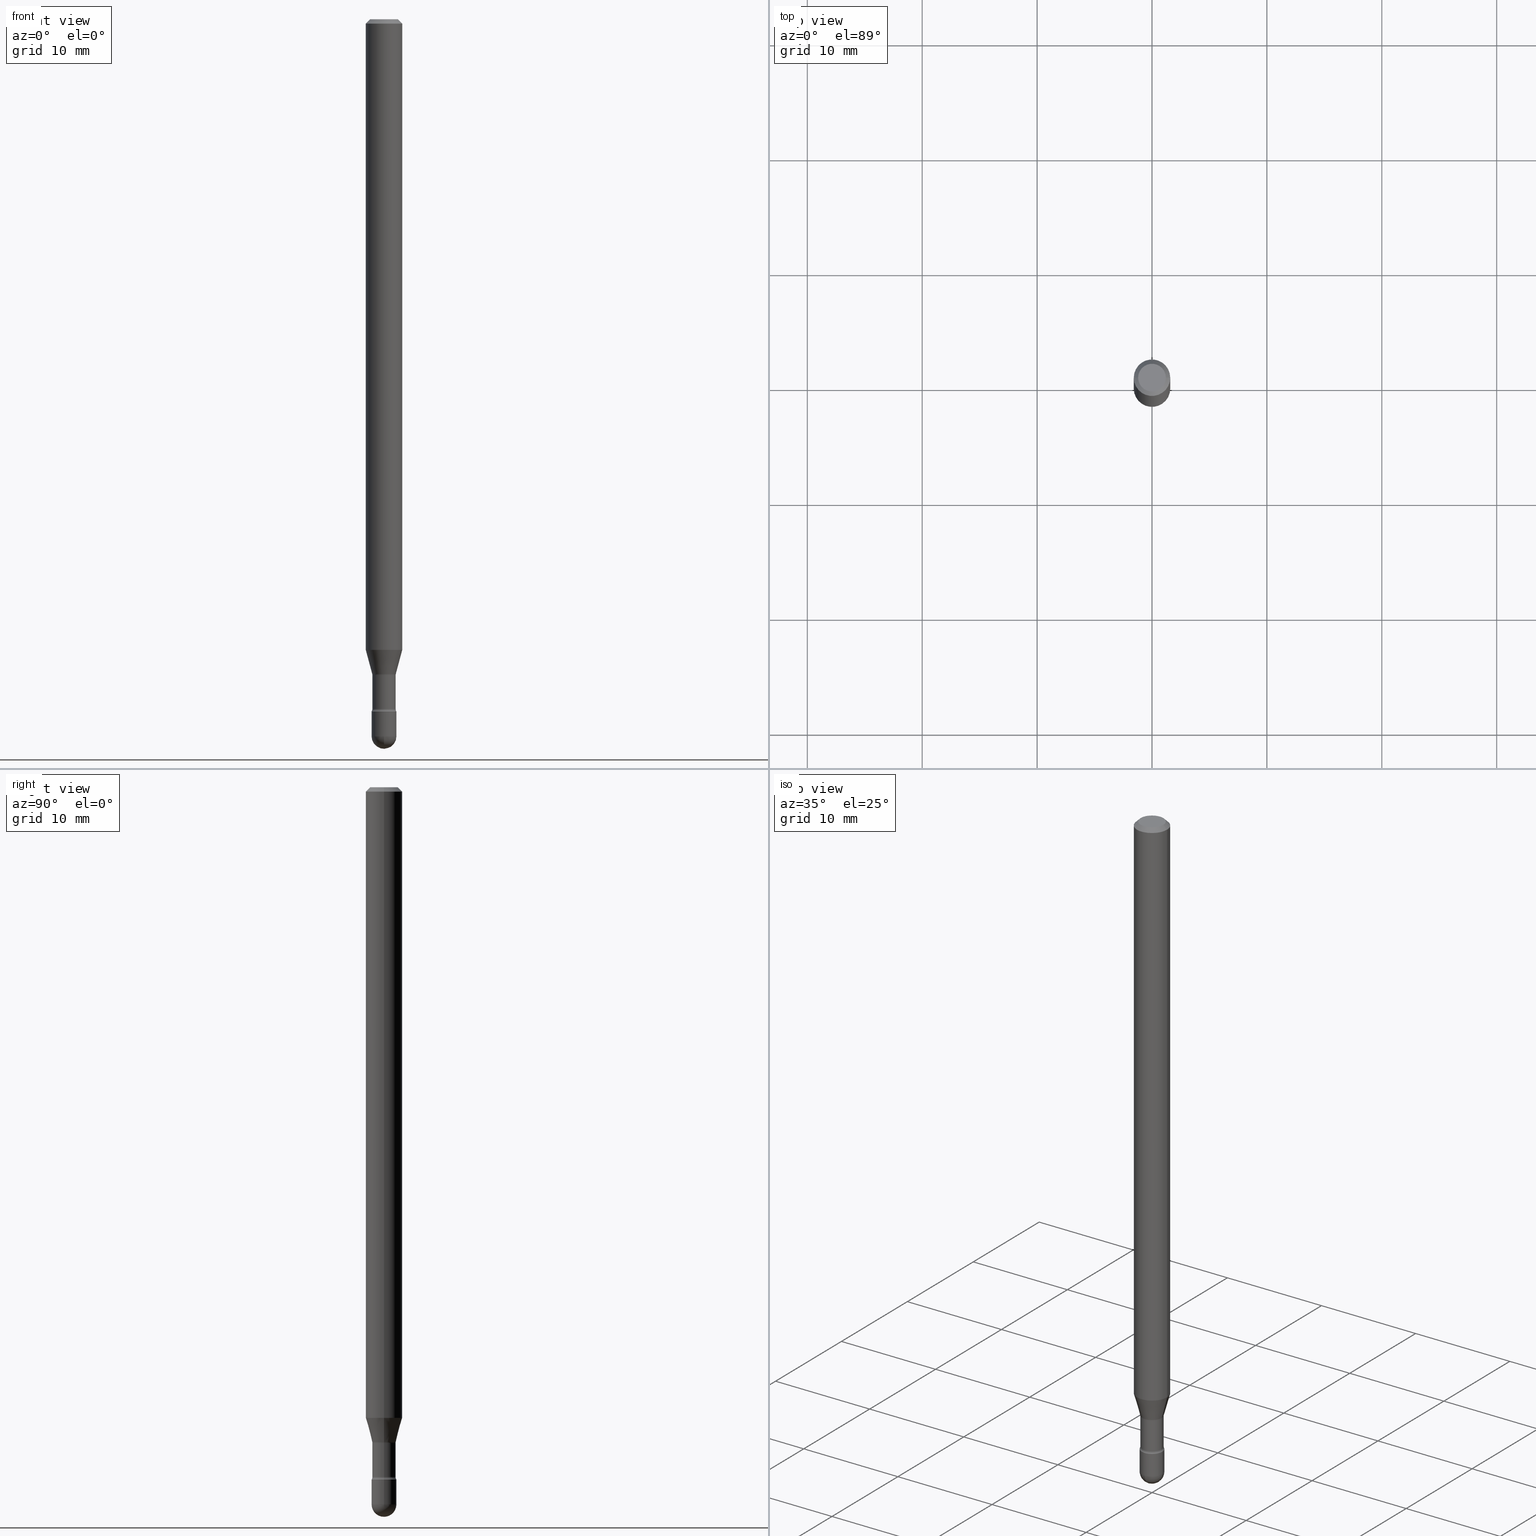
[diagram: canonical four-view strip — front | top / right | iso, engineering-drawing reading convention]
A machine part, canonical four-view strip (front | top / right | iso — engineering-drawing reading convention). The complete STEP part file that produces these views, byte-faithful:
ISO-10303-21;
HEADER;
FILE_DESCRIPTION (( 'STEP AP203' ),
    '1' );
FILE_NAME ('09543.STEP',
    '2024-04-10T00:30:16',
    ( '' ),
    ( '' ),
    'SwSTEP 2.0',
    'SolidWorks 2023',
    '' );
FILE_SCHEMA (( 'CONFIG_CONTROL_DESIGN' ));
ENDSEC;

DATA;
#1 = APPLICATION_PROTOCOL_DEFINITION ( 'international standard', 'config_control_design', 1994, #558 ) ;
#2 = CYLINDRICAL_SURFACE ( 'NONE', #42, 0.03995000000000002716 ) ;
#3 = DIRECTION ( 'NONE',  ( -2.445468806185136597E-29, 3.491481338843145583E-15, 1.000000000000000000 ) ) ;
#4 = LENGTH_MEASURE_WITH_UNIT ( LENGTH_MEASURE( 0.02539999999999999897 ), #262 );
#5 = VERTEX_POINT ( 'NONE', #209 ) ;
#6 = DIRECTION ( 'NONE',  ( -2.438088387897960049E-29, 3.491481338843145188E-15, 1.000000000000000000 ) ) ;
#7 = CARTESIAN_POINT ( 'NONE',  ( 6.009739591199973545E-29, -8.580315390207031617E-15, -2.457500000000000018 ) ) ;
#8 = AXIS2_PLACEMENT_3D ( 'NONE', #528, #492, #316 ) ;
#9 = EDGE_CURVE ( 'NONE', #60, #522, #317, .T. ) ;
#10 = ORIENTED_EDGE ( 'NONE', *, *, #423, .F. ) ;
#11 = ORIENTED_EDGE ( 'NONE', *, *, #13, .T. ) ;
#12 = LINE ( 'NONE', #517, #441 ) ;
#13 = EDGE_CURVE ( 'NONE', #322, #99, #75, .T. ) ;
#14 = EDGE_LOOP ( 'NONE', ( #66, #195, #122, #470 ) ) ;
#15 = CARTESIAN_POINT ( 'NONE',  ( 5.780192113673479644E-29, -8.252582428684399354E-15, -2.363633549139569023 ) ) ;
#16 = CIRCLE ( 'NONE', #299, 0.01499999999999996822 ) ;
#17 = AXIS2_PLACEMENT_3D ( 'NONE', #324, #463, #553 ) ;
#18 = EDGE_LOOP ( 'NONE', ( #50, #103, #437, #511 ) ) ;
#19 = PERSON_AND_ORGANIZATION_ROLE ( 'creator' ) ;
#20 = DIRECTION ( 'NONE',  ( 1.000000000000000000, -6.982962677686273810E-15, 0.000000000000000000 ) ) ;
#21 = ORIENTED_EDGE ( 'NONE', *, *, #399, .T. ) ;
#22 = CALENDAR_DATE ( 2024, 9, 4 ) ;
#23 = CARTESIAN_POINT ( 'NONE',  ( 3.668203209277725232E-31, -5.237222008264747365E-17, -0.01500000000000008271 ) ) ;
#24 = DIRECTION ( 'NONE',  ( -2.445468806185136597E-29, 3.491481338843145583E-15, 1.000000000000000000 ) ) ;
#25 = PLANE ( 'NONE',  #41 ) ;
#26 = FACE_OUTER_BOUND ( 'NONE', #89, .T. ) ;
#27 = AXIS2_PLACEMENT_3D ( 'NONE', #171, #102, #520 ) ;
#28 = CARTESIAN_POINT ( 'NONE',  ( 2.967759138017263083E-16, 0.04249999999999140576, -2.457500000000000462 ) ) ;
#29 = AXIS2_PLACEMENT_3D ( 'NONE', #364, #140, #151 ) ;
#30 = APPROVAL_PERSON_ORGANIZATION ( #329, #38, #507 ) ;
#31 = ORIENTED_EDGE ( 'NONE', *, *, #349, .T. ) ;
#32 = DATE_TIME_ROLE ( 'creation_date' ) ;
#33 = CC_DESIGN_DATE_AND_TIME_ASSIGNMENT ( #458, #495, ( #466 ) ) ;
#34 = EDGE_LOOP ( 'NONE', ( #48, #465, #446, #319 ) ) ;
#35 = APPROVAL_DATE_TIME ( #67, #510 ) ;
#36 = ORIENTED_EDGE ( 'NONE', *, *, #312, .T. ) ;
#37 = AXIS2_PLACEMENT_3D ( 'NONE', #231, #191, #356 ) ;
#38 = APPROVAL ( #280, 'UNSPECIFIED' ) ;
#39 = CARTESIAN_POINT ( 'NONE',  ( 5.485412742508554761E-29, -7.831715611289249761E-15, -2.243092501787273374 ) ) ;
#40 = DIRECTION ( 'NONE',  ( -1.000000000000000000, 7.105427357601006592E-15, 0.000000000000000000 ) ) ;
#41 = AXIS2_PLACEMENT_3D ( 'NONE', #85, #460, #539 ) ;
#42 = AXIS2_PLACEMENT_3D ( 'NONE', #443, #96, #220 ) ;
#43 = CIRCLE ( 'NONE', #222, 0.06250000000000000000 ) ;
#44 = CARTESIAN_POINT ( 'NONE',  ( 3.668203209277725232E-31, -5.237222008264747365E-17, -0.01500000000000008271 ) ) ;
#45 = CARTESIAN_POINT ( 'NONE',  ( 0.000000000000000000, 0.000000000000000000, 0.000000000000000000 ) ) ;
#46 = DIRECTION ( 'NONE',  ( 1.000000000000000000, -6.982962677686267499E-15, 4.884662768193073002E-29 ) ) ;
#47 = EDGE_CURVE ( 'NONE', #273, #60, #382, .T. ) ;
#48 = ORIENTED_EDGE ( 'NONE', *, *, #312, .F. ) ;
#49 = CARTESIAN_POINT ( 'NONE',  ( -0.05494999999999999885, -7.454827305980765698E-15, -2.246974787463811296 ) ) ;
#50 = ORIENTED_EDGE ( 'NONE', *, *, #170, .F. ) ;
#51 = CARTESIAN_POINT ( 'NONE',  ( 5.284272327951308213E-29, -7.544540407034922761E-15, -2.160842254289322195 ) ) ;
#52 = CONICAL_SURFACE ( 'NONE', #432, 0.06250000000000000000, 0.7853981633974483900 ) ;
#53 =( NAMED_UNIT ( * ) SI_UNIT ( $, .STERADIAN. ) SOLID_ANGLE_UNIT ( ) );
#54 = ORIENTED_EDGE ( 'NONE', *, *, #199, .F. ) ;
#55 = DIRECTION ( 'NONE',  ( 7.105427357601001859E-15, 1.000000000000000000, -3.491481338843145583E-15 ) ) ;
#56 = DIRECTION ( 'NONE',  ( 1.000000000000000000, -6.982962677686266711E-15, 4.876176775795935793E-29 ) ) ;
#57 = EDGE_LOOP ( 'NONE', ( #554, #404, #21, #198, #10 ) ) ;
#58 = DIRECTION ( 'NONE',  ( 1.000000000000000000, -6.982962677686269866E-15, 0.000000000000000000 ) ) ;
#59 = ADVANCED_FACE ( 'NONE', ( #206 ), #532, .F. ) ;
#60 = VERTEX_POINT ( 'NONE', #472 ) ;
#61 = VERTEX_POINT ( 'NONE', #513 ) ;
#62 = APPROVAL_ROLE ( '' ) ;
#63 = CARTESIAN_POINT ( 'NONE',  ( 5.485412742508554761E-29, -7.831715611289249761E-15, -2.243092501787273374 ) ) ;
#64 = AXIS2_PLACEMENT_3D ( 'NONE', #94, #545, #123 ) ;
#65 = AXIS2_PLACEMENT_3D ( 'NONE', #427, #157, #150 ) ;
#66 = ORIENTED_EDGE ( 'NONE', *, *, #335, .F. ) ;
#67 = DATE_AND_TIME ( #549, #385 ) ;
#68 = DIRECTION ( 'NONE',  ( 1.000000000000000000, -6.982962677686266711E-15, 0.000000000000000000 ) ) ;
#69 = ADVANCED_FACE ( 'NONE', ( #473 ), #25, .T. ) ;
#70 = PERSON_AND_ORGANIZATION ( #134, #378 ) ;
#71 = DIRECTION ( 'NONE',  ( 1.000000000000000000, -6.982962677686261977E-15, 4.883557194083111219E-29 ) ) ;
#72 = LINE ( 'NONE', #243, #172 ) ;
#73 = ORIENTED_EDGE ( 'NONE', *, *, #557, .F. ) ;
#74 = FACE_OUTER_BOUND ( 'NONE', #258, .T. ) ;
#75 = CIRCLE ( 'NONE', #207, 0.04250000000000000999 ) ;
#76 = CYLINDRICAL_SURFACE ( 'NONE', #490, 0.03995000000000002716 ) ;
#77 = APPROVAL_PERSON_ORGANIZATION ( #287, #83, #152 ) ;
#78 = PERSON_AND_ORGANIZATION_ROLE ( 'design_supplier' ) ;
#79 = DIRECTION ( 'NONE',  ( 1.000000000000000000, -6.982962677686266711E-15, 4.852736867747366207E-29 ) ) ;
#80 = ORIENTED_EDGE ( 'NONE', *, *, #153, .F. ) ;
#81 = CARTESIAN_POINT ( 'NONE',  ( -0.06250000000000000000, -3.354367103708722895E-15, -0.01500000000000008271 ) ) ;
#82 = DIRECTION ( 'NONE',  ( 1.000000000000000000, -6.982962677686255667E-15, 0.000000000000000000 ) ) ;
#83 = APPROVAL ( #289, 'UNSPECIFIED' ) ;
#84 = DIRECTION ( 'NONE',  ( 1.000000000000000000, -6.982962677686266711E-15, 0.000000000000000000 ) ) ;
#85 = CARTESIAN_POINT ( 'NONE',  ( 5.800652008271142608E-29, -8.281793735735939519E-15, -2.371999999999999886 ) ) ;
#86 = CIRCLE ( 'NONE', #508, 0.03995000000000003409 ) ;
#87 = CIRCLE ( 'NONE', #197, 0.04046111260566397777 ) ;
#88 = EDGE_CURVE ( 'NONE', #233, #334, #359, .T. ) ;
#89 = EDGE_LOOP ( 'NONE', ( #368, #36, #442, #331 ) ) ;
#90 = FACE_OUTER_BOUND ( 'NONE', #34, .T. ) ;
#91 = AXIS2_PLACEMENT_3D ( 'NONE', #7, #3, #97 ) ;
#92 =( GEOMETRIC_REPRESENTATION_CONTEXT ( 3 ) GLOBAL_UNCERTAINTY_ASSIGNED_CONTEXT ( ( #163 ) ) GLOBAL_UNIT_ASSIGNED_CONTEXT ( ( #135, #186, #53 ) ) REPRESENTATION_CONTEXT ( 'NONE', 'WORKASPACE' ) );
#93 = EDGE_CURVE ( 'NONE', #159, #232, #72, .T. ) ;
#94 = CARTESIAN_POINT ( 'NONE',  ( 5.494906751027227504E-29, -7.845270539280941136E-15, -2.246974787463811296 ) ) ;
#95 = ORIENTED_EDGE ( 'NONE', *, *, #226, .T. ) ;
#96 = DIRECTION ( 'NONE',  ( -2.445468806185136597E-29, 3.491481338843145583E-15, 1.000000000000000000 ) ) ;
#97 = DIRECTION ( 'NONE',  ( 1.000000000000000000, -6.982962677686273810E-15, 0.000000000000000000 ) ) ;
#98 = EDGE_LOOP ( 'NONE', ( #95, #263, #239, #54 ) ) ;
#99 = VERTEX_POINT ( 'NONE', #28 ) ;
#100 = AXIS2_PLACEMENT_3D ( 'NONE', #267, #306, #225 ) ;
#101 = FACE_OUTER_BOUND ( 'NONE', #14, .T. ) ;
#102 = DIRECTION ( 'NONE',  ( -1.000000000000000000, 7.105427357601001070E-15, -4.926315508542082329E-29 ) ) ;
#103 = ORIENTED_EDGE ( 'NONE', *, *, #158, .F. ) ;
#104 = CARTESIAN_POINT ( 'NONE',  ( 5.780192113673479644E-29, -8.252582428684399354E-15, -2.363633549139569023 ) ) ;
#105 = FACE_OUTER_BOUND ( 'NONE', #439, .T. ) ;
#106 = ORIENTED_EDGE ( 'NONE', *, *, #166, .T. ) ;
#107 = DIRECTION ( 'NONE',  ( -2.445468806185136877E-29, 3.491481338843145188E-15, 1.000000000000000000 ) ) ;
#108 = FACE_OUTER_BOUND ( 'NONE', #505, .T. ) ;
#109 = COORDINATED_UNIVERSAL_TIME_OFFSET ( 5, 0, .BEHIND. ) ;
#110 = CLOSED_SHELL ( 'NONE', ( #59, #214, #481, #265, #301, #332, #259, #190, #344, #114, #216, #375, #506, #381 ) ) ;
#111 = CONICAL_SURFACE ( 'NONE', #489, 0.04046111260566397777, 0.2617993877991501295 ) ;
#112 = CARTESIAN_POINT ( 'NONE',  ( -0.05494999999999999885, -7.862139195384223915E-15, -2.363633549139569023 ) ) ;
#113 = CARTESIAN_POINT ( 'NONE',  ( 5.485412742508554761E-29, -7.831715611289249761E-15, -2.243092501787273374 ) ) ;
#114 = ADVANCED_FACE ( 'NONE', ( #303 ), #327, .F. ) ;
#115 = DIRECTION ( 'NONE',  ( -2.445468806185136597E-29, 3.491481338843145583E-15, 1.000000000000000000 ) ) ;
#116 = ORIENTED_EDGE ( 'NONE', *, *, #230, .T. ) ;
#117 = COORDINATED_UNIVERSAL_TIME_OFFSET ( 5, 0, .BEHIND. ) ;
#118 = EDGE_CURVE ( 'NONE', #334, #233, #395, .T. ) ;
#119 = VECTOR ( 'NONE', #107, 39.37007874015748143 ) ;
#120 = CC_DESIGN_PERSON_AND_ORGANIZATION_ASSIGNMENT ( #149, #503, ( #438 ) ) ;
#121 = DIRECTION ( 'NONE',  ( 6.982962677686265922E-15, 1.000000000000000000, -6.427877632151215276E-15 ) ) ;
#122 = ORIENTED_EDGE ( 'NONE', *, *, #455, .T. ) ;
#123 = DIRECTION ( 'NONE',  ( 1.000000000000000000, -6.982962677686269866E-15, 4.883557194083114022E-29 ) ) ;
#124 = DIRECTION ( 'NONE',  ( 1.000000000000000000, -6.982962677686276177E-15, 0.000000000000000000 ) ) ;
#125 = EDGE_CURVE ( 'NONE', #322, #61, #478, .T. ) ;
#126 = DIRECTION ( 'NONE',  ( -2.445468806185136877E-29, 3.491481338843145188E-15, 1.000000000000000000 ) ) ;
#127 = LINE ( 'NONE', #352, #208 ) ;
#128 = FACE_OUTER_BOUND ( 'NONE', #167, .T. ) ;
#129 = AXIS2_PLACEMENT_3D ( 'NONE', #406, #237, #156 ) ;
#130 = CC_DESIGN_APPROVAL ( #510, ( #466 ) ) ;
#131 = ORIENTED_EDGE ( 'NONE', *, *, #170, .T. ) ;
#132 = DIRECTION ( 'NONE',  ( 1.000000000000000000, -6.982962677686266711E-15, 4.876176775795935793E-29 ) ) ;
#133 = EDGE_CURVE ( 'NONE', #535, #277, #189, .T. ) ;
#134 = PERSON ( 'UNSPECIFIED', 'UNSPECIFIED', 'UNSPECIFIED', ('UNSPECIFIED'), ('UNSPECIFIED'), ('UNSPECIFIED') ) ;
#135 =( CONVERSION_BASED_UNIT ( 'INCH', #4 ) LENGTH_UNIT ( ) NAMED_UNIT ( #405 ) );
#136 = VERTEX_POINT ( 'NONE', #310 ) ;
#137 = DIRECTION ( 'NONE',  ( -0.7071067811865475727, 2.468850131082257455E-15, -0.7071067811865474617 ) ) ;
#138 = FACE_OUTER_BOUND ( 'NONE', #57, .T. ) ;
#139 = DIRECTION ( 'NONE',  ( -1.000000000000000000, 6.982962677686265922E-15, -4.876176775795935793E-29 ) ) ;
#140 = DIRECTION ( 'NONE',  ( -2.445468806185136597E-29, 3.491481338843145583E-15, 1.000000000000000000 ) ) ;
#141 = ORIENTED_EDGE ( 'NONE', *, *, #474, .T. ) ;
#142 = CYLINDRICAL_SURFACE ( 'NONE', #292, 0.06250000000000000000 ) ;
#143 = EDGE_CURVE ( 'NONE', #527, #99, #203, .T. ) ;
#144 = AXIS2_PLACEMENT_3D ( 'NONE', #428, #376, #82 ) ;
#145 = EDGE_LOOP ( 'NONE', ( #219, #297, #363, #413 ) ) ;
#146 = CARTESIAN_POINT ( 'NONE',  ( 0.04250000000000000999, -2.967759138016664042E-16, 2.072375129713273202E-30 ) ) ;
#147 = DIRECTION ( 'NONE',  ( 1.000000000000000000, -6.982962677686267499E-15, 4.884662768193073002E-29 ) ) ;
#148 = ORIENTED_EDGE ( 'NONE', *, *, #557, .T. ) ;
#149 = PERSON_AND_ORGANIZATION ( #134, #378 ) ;
#150 = DIRECTION ( 'NONE',  ( 1.000000000000000000, -6.982962677686261977E-15, 4.883557194083111219E-29 ) ) ;
#151 = DIRECTION ( 'NONE',  ( 1.000000000000000000, -6.982962677686273810E-15, 0.000000000000000000 ) ) ;
#152 = APPROVAL_ROLE ( '' ) ;
#153 = EDGE_CURVE ( 'NONE', #522, #60, #221, .T. ) ;
#154 = CARTESIAN_POINT ( 'NONE',  ( -0.03995000000000000634, -7.765064661046509140E-15, -2.246974787463811296 ) ) ;
#155 = ORIENTED_EDGE ( 'NONE', *, *, #548, .T. ) ;
#156 = DIRECTION ( 'NONE',  ( 1.000000000000000000, -6.982962677686276177E-15, 0.000000000000000000 ) ) ;
#157 = DIRECTION ( 'NONE',  ( -2.445468806185136597E-29, 3.491481338843145583E-15, 1.000000000000000000 ) ) ;
#158 = EDGE_CURVE ( 'NONE', #535, #484, #516, .T. ) ;
#159 = VERTEX_POINT ( 'NONE', #314 ) ;
#160 = ORIENTED_EDGE ( 'NONE', *, *, #93, .T. ) ;
#161 = SECURITY_CLASSIFICATION_LEVEL ( 'unclassified' ) ;
#162 = CARTESIAN_POINT ( 'NONE',  ( -0.03995000000000002716, 2.838618229361618935E-16, 4.780733988912441404E-16 ) ) ;
#163 = UNCERTAINTY_MEASURE_WITH_UNIT (LENGTH_MEASURE( 1.000000000000000082E-05 ), #135, 'distance_accuracy_value', 'NONE');
#164 = ORIENTED_EDGE ( 'NONE', *, *, #153, .T. ) ;
#165 = MANIFOLD_SOLID_BREP ( 'Body-Move/Copy2[1]', #419 ) ;
#166 = EDGE_CURVE ( 'NONE', #397, #522, #515, .T. ) ;
#167 = EDGE_LOOP ( 'NONE', ( #371, #192, #279, #309 ) ) ;
#168 = APPROVAL_DATE_TIME ( #201, #83 ) ;
#169 = CARTESIAN_POINT ( 'NONE',  ( 0.03995000000000003409, -8.531551787657965879E-15, -2.363633549139569023 ) ) ;
#170 = EDGE_CURVE ( 'NONE', #484, #5, #264, .T. ) ;
#171 = CARTESIAN_POINT ( 'NONE',  ( 6.009739591199973545E-29, -8.580315390207031617E-15, -2.457500000000000018 ) ) ;
#172 = VECTOR ( 'NONE', #418, 39.37007874015748143 ) ;
#173 = CARTESIAN_POINT ( 'NONE',  ( 5.800652008271142608E-29, -8.281793735735939519E-15, -2.371999999999999886 ) ) ;
#174 = DIRECTION ( 'NONE',  ( 1.000000000000000000, -6.982962677686273810E-15, 0.000000000000000000 ) ) ;
#175 = CIRCLE ( 'NONE', #29, 0.04250000000000000999 ) ;
#176 = DIRECTION ( 'NONE',  ( -2.445468806185136597E-29, 3.491481338843145583E-15, 1.000000000000000000 ) ) ;
#177 = CIRCLE ( 'NONE', #562, 0.04249999999999999611 ) ;
#178 = CARTESIAN_POINT ( 'NONE',  ( -1.169113584055446105E-44, 1.669184350826100908E-30, 4.780733988912460139E-16 ) ) ;
#179 = APPLICATION_CONTEXT ( 'configuration controlled 3d designs of mechanical parts and assemblies' ) ;
#180 = EDGE_CURVE ( 'NONE', #278, #282, #86, .T. ) ;
#181 = DIRECTION ( 'NONE',  ( 1.000000000000000000, -6.982962677686276177E-15, 0.000000000000000000 ) ) ;
#182 = CONICAL_SURFACE ( 'NONE', #369, 0.04046111260566397777, 0.2617993877991501295 ) ;
#183 = AXIS2_PLACEMENT_3D ( 'NONE', #360, #445, #56 ) ;
#184 = ORIENTED_EDGE ( 'NONE', *, *, #125, .F. ) ;
#185 = DIRECTION ( 'NONE',  ( -2.445468806185136597E-29, 3.491481338843145583E-15, 1.000000000000000000 ) ) ;
#186 =( NAMED_UNIT ( * ) PLANE_ANGLE_UNIT ( ) SI_UNIT ( $, .RADIAN. ) );
#187 = ORIENTED_EDGE ( 'NONE', *, *, #210, .F. ) ;
#188 = MECHANICAL_CONTEXT ( 'NONE', #558, 'mechanical' ) ;
#189 = LINE ( 'NONE', #321, #270 ) ;
#190 = ADVANCED_FACE ( 'NONE', ( #101 ), #142, .T. ) ;
#191 = DIRECTION ( 'NONE',  ( -1.000000000000000000, 6.982962677686265922E-15, -4.883557194083112340E-29 ) ) ;
#192 = ORIENTED_EDGE ( 'NONE', *, *, #210, .T. ) ;
#193 = DIRECTION ( 'NONE',  ( -2.445468806185136597E-29, 3.491481338843145583E-15, 1.000000000000000000 ) ) ;
#194 = CARTESIAN_POINT ( 'NONE',  ( 0.04250000000000000999, -8.727830476773152219E-15, -2.457500000000000018 ) ) ;
#195 = ORIENTED_EDGE ( 'NONE', *, *, #118, .T. ) ;
#196 = AXIS2_PLACEMENT_3D ( 'NONE', #51, #193, #224 ) ;
#197 = AXIS2_PLACEMENT_3D ( 'NONE', #39, #552, #268 ) ;
#198 = ORIENTED_EDGE ( 'NONE', *, *, #125, .T. ) ;
#199 = EDGE_CURVE ( 'NONE', #282, #60, #274, .T. ) ;
#200 = DIRECTION ( 'NONE',  ( -2.445468806185136597E-29, 3.491481338843145583E-15, 1.000000000000000000 ) ) ;
#201 = DATE_AND_TIME ( #22, #300 ) ;
#202 = DIRECTION ( 'NONE',  ( -2.445468806185136597E-29, 3.491481338843145583E-15, 1.000000000000000000 ) ) ;
#203 = CIRCLE ( 'NONE', #254, 0.04249999999999994754 ) ;
#204 = ORIENTED_EDGE ( 'NONE', *, *, #423, .T. ) ;
#205 = ORIENTED_EDGE ( 'NONE', *, *, #226, .F. ) ;
#206 = FACE_OUTER_BOUND ( 'NONE', #524, .T. ) ;
#207 = AXIS2_PLACEMENT_3D ( 'NONE', #336, #250, #174 ) ;
#208 = VECTOR ( 'NONE', #391, 39.37007874015747433 ) ;
#209 = CARTESIAN_POINT ( 'NONE',  ( 0.06250000000000000000, -4.888073874380391431E-16, -0.01500000000000008271 ) ) ;
#210 = EDGE_CURVE ( 'NONE', #397, #334, #127, .T. ) ;
#211 = CARTESIAN_POINT ( 'NONE',  ( 6.115489243827347903E-29, -8.726100972659677042E-15, -2.500000000000000000 ) ) ;
#212 = FACE_OUTER_BOUND ( 'NONE', #145, .T. ) ;
#213 = TOROIDAL_SURFACE ( 'NONE', #555, 0.05494999999999999885, 0.01499999999999996995 ) ;
#214 = ADVANCED_FACE ( 'NONE', ( #483 ), #2, .T. ) ;
#215 = CIRCLE ( 'NONE', #17, 0.01499999999999996822 ) ;
#216 = ADVANCED_FACE ( 'NONE', ( #393 ), #305, .F. ) ;
#217 = DIRECTION ( 'NONE',  ( 0.000000000000000000, 0.000000000000000000, 1.000000000000000000 ) ) ;
#218 = DIRECTION ( 'NONE',  ( -2.445468806185136877E-29, 3.491481338843145188E-15, 1.000000000000000000 ) ) ;
#219 = ORIENTED_EDGE ( 'NONE', *, *, #88, .T. ) ;
#220 = DIRECTION ( 'NONE',  ( 1.000000000000000000, -6.982962677686265922E-15, 4.858810380723266639E-29 ) ) ;
#221 = CIRCLE ( 'NONE', #8, 0.03995000000000000634 ) ;
#222 = AXIS2_PLACEMENT_3D ( 'NONE', #471, #536, #68 ) ;
#223 = ORIENTED_EDGE ( 'NONE', *, *, #548, .F. ) ;
#224 = DIRECTION ( 'NONE',  ( 1.000000000000000000, -6.982962677686262766E-15, 0.000000000000000000 ) ) ;
#225 = DIRECTION ( 'NONE',  ( -1.000000000000000000, 6.982962677686266711E-15, 0.000000000000000000 ) ) ;
#226 = EDGE_CURVE ( 'NONE', #282, #278, #475, .T. ) ;
#227 = SPHERICAL_SURFACE ( 'NONE', #37, 0.04249999999999994754 ) ;
#228 = ORIENTED_EDGE ( 'NONE', *, *, #444, .F. ) ;
#229 = CARTESIAN_POINT ( 'NONE',  ( 2.967759138017242869E-16, 0.04249999999999171801, -2.371999999999999886 ) ) ;
#230 = EDGE_CURVE ( 'NONE', #61, #232, #337, .T. ) ;
#231 = CARTESIAN_POINT ( 'NONE',  ( 6.009739591199973545E-29, -8.580315390207031617E-15, -2.457500000000000018 ) ) ;
#232 = VERTEX_POINT ( 'NONE', #401 ) ;
#233 = VERTEX_POINT ( 'NONE', #323 ) ;
#234 = AXIS2_PLACEMENT_3D ( 'NONE', #311, #496, #147 ) ;
#235 = VECTOR ( 'NONE', #561, 39.37007874015748143 ) ;
#236 = CARTESIAN_POINT ( 'NONE',  ( -1.169113584055446105E-44, 1.669184350826100908E-30, 4.780733988912460139E-16 ) ) ;
#237 = DIRECTION ( 'NONE',  ( -2.445468806185136597E-29, 3.491481338843145583E-15, 1.000000000000000000 ) ) ;
#238 = DIRECTION ( 'NONE',  ( 1.000000000000000000, -6.982962677686265922E-15, 4.858810380723266639E-29 ) ) ;
#239 = ORIENTED_EDGE ( 'NONE', *, *, #9, .F. ) ;
#240 = SHAPE_DEFINITION_REPRESENTATION ( #550, #373 ) ;
#241 = DIRECTION ( 'NONE',  ( -2.445468806185136597E-29, 3.491481338843145583E-15, 1.000000000000000000 ) ) ;
#242 = CARTESIAN_POINT ( 'NONE',  ( 0.04046111260566397777, -8.114254050512263122E-15, -2.243092501787273374 ) ) ;
#243 = CARTESIAN_POINT ( 'NONE',  ( -0.04250000000000000999, 3.019806626980426500E-16, -2.090547413358335560E-30 ) ) ;
#244 = ORIENTED_EDGE ( 'NONE', *, *, #286, .T. ) ;
#245 = APPROVAL_STATUS ( 'not_yet_approved' ) ;
#246 = AXIS2_PLACEMENT_3D ( 'NONE', #49, #55, #519 ) ;
#247 = CARTESIAN_POINT ( 'NONE',  ( 0.06250000000000000000, -4.364351673553899931E-16, 4.780733988912490708E-16 ) ) ;
#248 = EDGE_LOOP ( 'NONE', ( #223, #285 ) ) ;
#249 = COORDINATED_UNIVERSAL_TIME_OFFSET ( 5, 0, .BEHIND. ) ;
#250 = DIRECTION ( 'NONE',  ( -2.445468806185136597E-29, 3.491481338843145583E-15, 1.000000000000000000 ) ) ;
#251 = ORIENTED_EDGE ( 'NONE', *, *, #158, .T. ) ;
#252 = EDGE_CURVE ( 'NONE', #278, #522, #450, .T. ) ;
#253 = AXIS2_PLACEMENT_3D ( 'NONE', #379, #374, #296 ) ;
#254 = AXIS2_PLACEMENT_3D ( 'NONE', #396, #347, #261 ) ;
#255 = CIRCLE ( 'NONE', #433, 0.06250000000000000000 ) ;
#256 = CC_DESIGN_PERSON_AND_ORGANIZATION_ASSIGNMENT ( #538, #325, ( #466 ) ) ;
#257 = SPHERICAL_SURFACE ( 'NONE', #269, 0.04249999999999994754 ) ;
#258 = EDGE_LOOP ( 'NONE', ( #494, #131, #141, #429 ) ) ;
#259 = ADVANCED_FACE ( 'NONE', ( #409 ), #182, .T. ) ;
#260 = LOCAL_TIME ( 20, 30, 16.00000000000000000, #544 ) ;
#261 = DIRECTION ( 'NONE',  ( 6.982962677686265133E-15, 1.000000000000000000, 0.000000000000000000 ) ) ;
#262 =( LENGTH_UNIT ( ) NAMED_UNIT ( * ) SI_UNIT ( $, .METRE. ) );
#263 = ORIENTED_EDGE ( 'NONE', *, *, #252, .T. ) ;
#264 = LINE ( 'NONE', #388, #328 ) ;
#265 = ADVANCED_FACE ( 'NONE', ( #74 ), #52, .T. ) ;
#266 = ORIENTED_EDGE ( 'NONE', *, *, #408, .T. ) ;
#267 = CARTESIAN_POINT ( 'NONE',  ( 3.668203209277725232E-31, -5.237222008264747365E-17, -0.01500000000000008271 ) ) ;
#268 = DIRECTION ( 'NONE',  ( 1.000000000000000000, -6.982962677686276966E-15, 0.000000000000000000 ) ) ;
#269 = AXIS2_PLACEMENT_3D ( 'NONE', #565, #345, #121 ) ;
#270 = VECTOR ( 'NONE', #137, 39.37007874015748143 ) ;
#271 = CIRCLE ( 'NONE', #293, 0.04046111260566397777 ) ;
#272 = ADVANCED_FACE ( 'NONE', ( #90 ), #257, .T. ) ;
#273 = VERTEX_POINT ( 'NONE', #386 ) ;
#274 = LINE ( 'NONE', #355, #533 ) ;
#275 = DIRECTION ( 'NONE',  ( 1.000000000000000000, -6.982962677686276966E-15, 0.000000000000000000 ) ) ;
#276 = CYLINDRICAL_SURFACE ( 'NONE', #183, 0.04250000000000000999 ) ;
#277 = VERTEX_POINT ( 'NONE', #81 ) ;
#278 = VERTEX_POINT ( 'NONE', #459 ) ;
#279 = ORIENTED_EDGE ( 'NONE', *, *, #88, .F. ) ;
#280 = APPROVAL_STATUS ( 'not_yet_approved' ) ;
#281 = CARTESIAN_POINT ( 'NONE',  ( 0.04749999999999999362, -4.035134999187581581E-16, -8.274703207154280181E-17 ) ) ;
#282 = VERTEX_POINT ( 'NONE', #169 ) ;
#283 = DATE_AND_TIME ( #414, #318 ) ;
#284 = DIRECTION ( 'NONE',  ( 1.000000000000000000, -6.982962677686262766E-15, 0.000000000000000000 ) ) ;
#285 = ORIENTED_EDGE ( 'NONE', *, *, #349, .F. ) ;
#286 = EDGE_CURVE ( 'NONE', #273, #233, #497, .T. ) ;
#287 = PERSON_AND_ORGANIZATION ( #134, #378 ) ;
#288 = ORIENTED_EDGE ( 'NONE', *, *, #252, .F. ) ;
#289 = APPROVAL_STATUS ( 'not_yet_approved' ) ;
#290 = AXIS2_PLACEMENT_3D ( 'NONE', #559, #176, #340 ) ;
#291 = CC_DESIGN_PERSON_AND_ORGANIZATION_ASSIGNMENT ( #542, #19, ( #518 ) ) ;
#292 = AXIS2_PLACEMENT_3D ( 'NONE', #178, #346, #523 ) ;
#293 = AXIS2_PLACEMENT_3D ( 'NONE', #113, #24, #501 ) ;
#294 = DIRECTION ( 'NONE',  ( -2.445468806185136597E-29, 3.491481338843145583E-15, 1.000000000000000000 ) ) ;
#295 = EDGE_CURVE ( 'NONE', #278, #543, #16, .T. ) ;
#296 = DIRECTION ( 'NONE',  ( 1.000000000000000000, -6.982962677686274599E-15, 0.000000000000000000 ) ) ;
#297 = ORIENTED_EDGE ( 'NONE', *, *, #335, .T. ) ;
#298 = CC_DESIGN_PERSON_AND_ORGANIZATION_ASSIGNMENT ( #422, #78, ( #541 ) ) ;
#299 = AXIS2_PLACEMENT_3D ( 'NONE', #112, #551, #40 ) ;
#300 = LOCAL_TIME ( 20, 30, 16.00000000000000000, #117 ) ;
#301 = ADVANCED_FACE ( 'NONE', ( #212 ), #383, .T. ) ;
#302 = FACE_OUTER_BOUND ( 'NONE', #18, .T. ) ;
#303 = FACE_OUTER_BOUND ( 'NONE', #504, .T. ) ;
#304 = ORIENTED_EDGE ( 'NONE', *, *, #9, .T. ) ;
#305 = PLANE ( 'NONE',  #377 ) ;
#306 = DIRECTION ( 'NONE',  ( 2.445468806185136597E-29, -3.491481338843145583E-15, -1.000000000000000000 ) ) ;
#307 = TOROIDAL_SURFACE ( 'NONE', #64, 0.05494999999999999885, 0.01500000000000002373 ) ;
#308 = ORIENTED_EDGE ( 'NONE', *, *, #295, .F. ) ;
#309 = ORIENTED_EDGE ( 'NONE', *, *, #286, .F. ) ;
#310 = CARTESIAN_POINT ( 'NONE',  ( 0.04249999999999997530, -8.578569649537607747E-15, -2.371999999999999886 ) ) ;
#311 = CARTESIAN_POINT ( 'NONE',  ( 2.023552857353652888E-45, -2.889097183224559242E-31, -8.274703207154537794E-17 ) ) ;
#312 = EDGE_CURVE ( 'NONE', #527, #425, #420, .T. ) ;
#313 = ORIENTED_EDGE ( 'NONE', *, *, #408, .F. ) ;
#314 = CARTESIAN_POINT ( 'NONE',  ( -0.04250000000000000999, -8.129073900273443115E-15, -2.457500000000000018 ) ) ;
#315 = EDGE_LOOP ( 'NONE', ( #116, #204 ) ) ;
#316 = DIRECTION ( 'NONE',  ( 1.000000000000000000, -6.982962677686274599E-15, 0.000000000000000000 ) ) ;
#317 = CIRCLE ( 'NONE', #253, 0.03995000000000000634 ) ;
#318 = LOCAL_TIME ( 20, 30, 16.00000000000000000, #370 ) ;
#319 = ORIENTED_EDGE ( 'NONE', *, *, #399, .F. ) ;
#320 = EDGE_CURVE ( 'NONE', #159, #425, #480, .T. ) ;
#321 = CARTESIAN_POINT ( 'NONE',  ( -0.06250000000000000000, 3.840629472727441958E-16, -0.01500000000000008271 ) ) ;
#322 = VERTEX_POINT ( 'NONE', #194 ) ;
#323 = CARTESIAN_POINT ( 'NONE',  ( 0.06250000000000000000, -7.980975574390316008E-15, -2.160842254289322195 ) ) ;
#324 = CARTESIAN_POINT ( 'NONE',  ( 0.05494999999999999885, -8.636296227823259249E-15, -2.363633549139569023 ) ) ;
#325 = PERSON_AND_ORGANIZATION_ROLE ( 'classification_officer' ) ;
#326 = DIRECTION ( 'NONE',  ( 1.000000000000000000, -6.982962677686269866E-15, 0.000000000000000000 ) ) ;
#327 = PLANE ( 'NONE',  #454 ) ;
#328 = VECTOR ( 'NONE', #447, 39.37007874015748143 ) ;
#329 = PERSON_AND_ORGANIZATION ( #134, #378 ) ;
#330 = CIRCLE ( 'NONE', #431, 0.04249999999999999611 ) ;
#331 = ORIENTED_EDGE ( 'NONE', *, *, #512, .F. ) ;
#332 = ADVANCED_FACE ( 'NONE', ( #128 ), #111, .T. ) ;
#333 = APPROVAL_DATE_TIME ( #283, #38 ) ;
#334 = VERTEX_POINT ( 'NONE', #435 ) ;
#335 = EDGE_CURVE ( 'NONE', #334, #277, #12, .T. ) ;
#336 = CARTESIAN_POINT ( 'NONE',  ( 6.009739591199973545E-29, -8.580315390207031617E-15, -2.457500000000000018 ) ) ;
#337 = CIRCLE ( 'NONE', #129, 0.04249999999999999611 ) ;
#338 = CC_DESIGN_APPROVAL ( #83, ( #541 ) ) ;
#339 = ORIENTED_EDGE ( 'NONE', *, *, #512, .T. ) ;
#340 = DIRECTION ( 'NONE',  ( 1.000000000000000000, -6.982962677686269866E-15, 4.883557194083114022E-29 ) ) ;
#341 = CONICAL_SURFACE ( 'NONE', #100, 0.06250000000000000000, 0.7853981633974483900 ) ;
#342 = CIRCLE ( 'NONE', #556, 0.04250000000000000999 ) ;
#343 = MANIFOLD_SOLID_BREP ( 'Body-Move/Copy2[2]', #110 ) ;
#344 = ADVANCED_FACE ( 'NONE', ( #302 ), #341, .T. ) ;
#345 = DIRECTION ( 'NONE',  ( -1.000000000000000000, 6.982962677686265922E-15, -4.883557194083112340E-29 ) ) ;
#346 = DIRECTION ( 'NONE',  ( -2.445468806185136597E-29, 3.491481338843145583E-15, 1.000000000000000000 ) ) ;
#347 = DIRECTION ( 'NONE',  ( 1.000000000000000000, -6.982962677686265922E-15, 4.883557194083112340E-29 ) ) ;
#348 = DIRECTION ( 'NONE',  ( -2.445468806185136597E-29, 3.491481338843145583E-15, 1.000000000000000000 ) ) ;
#349 = EDGE_CURVE ( 'NONE', #543, #136, #177, .T. ) ;
#350 = VECTOR ( 'NONE', #457, 39.37007874015747433 ) ;
#351 = ORIENTED_EDGE ( 'NONE', *, *, #47, .T. ) ;
#352 = CARTESIAN_POINT ( 'NONE',  ( -0.04046111260566397777, -7.544222114861990127E-15, -2.243092501787273374 ) ) ;
#353 = CYLINDRICAL_SURFACE ( 'NONE', #402, 0.04250000000000000999 ) ;
#354 = ADVANCED_FACE ( 'NONE', ( #138 ), #353, .T. ) ;
#355 = CARTESIAN_POINT ( 'NONE',  ( 0.03995000000000002716, -2.789693589735648492E-16, 4.780733988912479861E-16 ) ) ;
#356 = DIRECTION ( 'NONE',  ( 6.982962677686265922E-15, 1.000000000000000000, -6.427877632151215276E-15 ) ) ;
#357 = ORIENTED_EDGE ( 'NONE', *, *, #180, .T. ) ;
#358 = DIRECTION ( 'NONE',  ( -2.445468806185136877E-29, 3.491481338843145188E-15, 1.000000000000000000 ) ) ;
#359 = CIRCLE ( 'NONE', #499, 0.06250000000000000000 ) ;
#360 = CARTESIAN_POINT ( 'NONE',  ( 0.000000000000000000, 0.000000000000000000, 0.000000000000000000 ) ) ;
#361 = VECTOR ( 'NONE', #358, 39.37007874015748143 ) ;
#362 = TOROIDAL_SURFACE ( 'NONE', #65, 0.05494999999999999885, 0.01499999999999996995 ) ;
#363 = ORIENTED_EDGE ( 'NONE', *, *, #474, .F. ) ;
#364 = CARTESIAN_POINT ( 'NONE',  ( 6.009739591199973545E-29, -8.580315390207031617E-15, -2.457500000000000018 ) ) ;
#365 = CALENDAR_DATE ( 2024, 9, 4 ) ;
#366 = EDGE_CURVE ( 'NONE', #484, #535, #384, .T. ) ;
#367 = DIRECTION ( 'NONE',  ( -2.445468806185136597E-29, 3.491481338843145583E-15, 1.000000000000000000 ) ) ;
#368 = ORIENTED_EDGE ( 'NONE', *, *, #143, .F. ) ;
#369 = AXIS2_PLACEMENT_3D ( 'NONE', #63, #200, #415 ) ;
#370 = COORDINATED_UNIVERSAL_TIME_OFFSET ( 5, 0, .BEHIND. ) ;
#371 = ORIENTED_EDGE ( 'NONE', *, *, #444, .T. ) ;
#372 = APPLICATION_PROTOCOL_DEFINITION ( 'international standard', 'config_control_design', 1994, #179 ) ;
#373 = ADVANCED_BREP_SHAPE_REPRESENTATION ( '09543', ( #165, #343, #421 ), #92 ) ;
#374 = DIRECTION ( 'NONE',  ( -2.445468806185136597E-29, 3.491481338843145583E-15, 1.000000000000000000 ) ) ;
#375 = ADVANCED_FACE ( 'NONE', ( #105 ), #213, .F. ) ;
#376 = DIRECTION ( 'NONE',  ( -6.982962677686266711E-15, -1.000000000000000000, 3.491481338843145583E-15 ) ) ;
#377 = AXIS2_PLACEMENT_3D ( 'NONE', #229, #6, #525 ) ;
#378 = ORGANIZATION ( 'UNSPECIFIED', 'UNSPECIFIED', '' ) ;
#379 = CARTESIAN_POINT ( 'NONE',  ( 5.494906751027227504E-29, -7.845270539280941136E-15, -2.246974787463811296 ) ) ;
#380 = CARTESIAN_POINT ( 'NONE',  ( -0.04749999999999999362, 3.578768372314208041E-16, -8.274703207154778150E-17 ) ) ;
#381 = ADVANCED_FACE ( 'NONE', ( #108 ), #307, .F. ) ;
#382 = CIRCLE ( 'NONE', #144, 0.01500000000000002720 ) ;
#383 = CYLINDRICAL_SURFACE ( 'NONE', #430, 0.06250000000000000000 ) ;
#384 = CIRCLE ( 'NONE', #234, 0.04749999999999999362 ) ;
#385 = LOCAL_TIME ( 20, 30, 16.00000000000000000, #109 ) ;
#386 = CARTESIAN_POINT ( 'NONE',  ( 0.04046111260566397777, -8.114254050512263122E-15, -2.243092501787273374 ) ) ;
#387 = ADVANCED_FACE ( 'NONE', ( #26 ), #227, .T. ) ;
#388 = CARTESIAN_POINT ( 'NONE',  ( 0.06250000000000000000, -4.811533449433681963E-16, -0.01500000000000008271 ) ) ;
#389 = ADVANCED_FACE ( 'NONE', ( #529 ), #276, .T. ) ;
#390 = DIRECTION ( 'NONE',  ( 1.000000000000000000, 0.000000000000000000, 0.000000000000000000 ) ) ;
#391 = DIRECTION ( 'NONE',  ( -0.2588190451025214611, 5.211531920934551042E-15, 0.9659258262890682012 ) ) ;
#392 = ORIENTED_EDGE ( 'NONE', *, *, #230, .F. ) ;
#393 = FACE_OUTER_BOUND ( 'NONE', #248, .T. ) ;
#394 = CARTESIAN_POINT ( 'NONE',  ( 5.800652008271142608E-29, -8.281793735735939519E-15, -2.371999999999999886 ) ) ;
#395 = CIRCLE ( 'NONE', #196, 0.06250000000000000000 ) ;
#396 = CARTESIAN_POINT ( 'NONE',  ( 6.009739591199973545E-29, -8.580315390207031617E-15, -2.457500000000000018 ) ) ;
#397 = VERTEX_POINT ( 'NONE', #493 ) ;
#398 = CARTESIAN_POINT ( 'NONE',  ( 5.485412742508554761E-29, -7.831715611289249761E-15, -2.243092501787273374 ) ) ;
#399 = EDGE_CURVE ( 'NONE', #425, #322, #175, .T. ) ;
#400 = ORIENTED_EDGE ( 'NONE', *, *, #118, .F. ) ;
#401 = CARTESIAN_POINT ( 'NONE',  ( -0.04249999999999999611, -8.129073900273443115E-15, -2.371999999999999886 ) ) ;
#402 = AXIS2_PLACEMENT_3D ( 'NONE', #486, #348, #132 ) ;
#403 = APPROVAL_PERSON_ORGANIZATION ( #70, #510, #62 ) ;
#404 = ORIENTED_EDGE ( 'NONE', *, *, #320, .T. ) ;
#405 = DIMENSIONAL_EXPONENTS ( 1.000000000000000000, 0.000000000000000000, 0.000000000000000000, 0.000000000000000000, 0.000000000000000000, 0.000000000000000000, 0.000000000000000000 ) ;
#406 = CARTESIAN_POINT ( 'NONE',  ( 5.800652008271142608E-29, -8.281793735735939519E-15, -2.371999999999999886 ) ) ;
#407 = DIRECTION ( 'NONE',  ( -2.445468806185136597E-29, 3.491481338843145583E-15, 1.000000000000000000 ) ) ;
#408 = EDGE_CURVE ( 'NONE', #282, #136, #215, .T. ) ;
#409 = FACE_OUTER_BOUND ( 'NONE', #547, .T. ) ;
#410 = CARTESIAN_POINT ( 'NONE',  ( 6.009739591199973545E-29, -8.580315390207031617E-15, -2.457500000000000018 ) ) ;
#411 = DIRECTION ( 'NONE',  ( 1.000000000000000000, -6.982962677686276177E-15, 0.000000000000000000 ) ) ;
#412 = ORIENTED_EDGE ( 'NONE', *, *, #295, .T. ) ;
#413 = ORIENTED_EDGE ( 'NONE', *, *, #455, .F. ) ;
#414 = CALENDAR_DATE ( 2024, 9, 4 ) ;
#415 = DIRECTION ( 'NONE',  ( 1.000000000000000000, -6.982962677686276966E-15, 0.000000000000000000 ) ) ;
#416 = ORIENTED_EDGE ( 'NONE', *, *, #366, .T. ) ;
#417 = LINE ( 'NONE', #247, #235 ) ;
#418 = DIRECTION ( 'NONE',  ( -2.445468806185136877E-29, 3.491481338843145188E-15, 1.000000000000000000 ) ) ;
#419 = CLOSED_SHELL ( 'NONE', ( #389, #387, #69, #272, #354 ) ) ;
#420 = CIRCLE ( 'NONE', #27, 0.04249999999999994754 ) ;
#421 = AXIS2_PLACEMENT_3D ( 'NONE', #45, #217, #390 ) ;
#422 = PERSON_AND_ORGANIZATION ( #134, #378 ) ;
#423 = EDGE_CURVE ( 'NONE', #232, #61, #534, .T. ) ;
#424 = ORIENTED_EDGE ( 'NONE', *, *, #47, .F. ) ;
#425 = VERTEX_POINT ( 'NONE', #498 ) ;
#426 = CALENDAR_DATE ( 2024, 9, 4 ) ;
#427 = CARTESIAN_POINT ( 'NONE',  ( 5.780192113673479644E-29, -8.252582428684399354E-15, -2.363633549139569023 ) ) ;
#428 = CARTESIAN_POINT ( 'NONE',  ( 0.05494999999999999885, -8.228984338419801032E-15, -2.246974787463811296 ) ) ;
#429 = ORIENTED_EDGE ( 'NONE', *, *, #133, .F. ) ;
#430 = AXIS2_PLACEMENT_3D ( 'NONE', #564, #294, #79 ) ;
#431 = AXIS2_PLACEMENT_3D ( 'NONE', #514, #477, #124 ) ;
#432 = AXIS2_PLACEMENT_3D ( 'NONE', #44, #521, #546 ) ;
#433 = AXIS2_PLACEMENT_3D ( 'NONE', #23, #367, #84 ) ;
#434 = DIRECTION ( 'NONE',  ( -2.445468806185136597E-29, 3.491481338843145583E-15, 1.000000000000000000 ) ) ;
#435 = CARTESIAN_POINT ( 'NONE',  ( -0.06250000000000000000, -7.100451197184860933E-15, -2.160842254289322195 ) ) ;
#436 = DIRECTION ( 'NONE',  ( 2.438088387897960049E-29, -3.491481338843145188E-15, -1.000000000000000000 ) ) ;
#437 = ORIENTED_EDGE ( 'NONE', *, *, #133, .T. ) ;
#438 = PRODUCT ( '09543', '09543', '', ( #188 ) ) ;
#439 = EDGE_LOOP ( 'NONE', ( #308, #205, #266, #155 ) ) ;
#440 = DIRECTION ( 'NONE',  ( -2.445468806185136597E-29, 3.491481338843145583E-15, 1.000000000000000000 ) ) ;
#441 = VECTOR ( 'NONE', #126, 39.37007874015748143 ) ;
#442 = ORIENTED_EDGE ( 'NONE', *, *, #320, .F. ) ;
#443 = CARTESIAN_POINT ( 'NONE',  ( -1.169113584055446105E-44, 1.669184350826100908E-30, 4.780733988912460139E-16 ) ) ;
#444 = EDGE_CURVE ( 'NONE', #273, #397, #271, .T. ) ;
#445 = DIRECTION ( 'NONE',  ( -2.445468806185136597E-29, 3.491481338843145583E-15, 1.000000000000000000 ) ) ;
#446 = ORIENTED_EDGE ( 'NONE', *, *, #13, .F. ) ;
#447 = DIRECTION ( 'NONE',  ( 0.7071067811865475727, -7.319954787623256045E-15, -0.7071067811865474617 ) ) ;
#448 = ORIENTED_EDGE ( 'NONE', *, *, #199, .T. ) ;
#449 = PERSON_AND_ORGANIZATION_ROLE ( 'creator' ) ;
#450 = LINE ( 'NONE', #162, #119 ) ;
#451 = DIRECTION ( 'NONE',  ( -2.445468806185136597E-29, 3.491481338843145583E-15, 1.000000000000000000 ) ) ;
#452 = FACE_OUTER_BOUND ( 'NONE', #482, .T. ) ;
#453 = DIRECTION ( 'NONE',  ( -2.445468806185136597E-29, 3.491481338843145583E-15, 1.000000000000000000 ) ) ;
#454 = AXIS2_PLACEMENT_3D ( 'NONE', #462, #436, #139 ) ;
#455 = EDGE_CURVE ( 'NONE', #233, #5, #417, .T. ) ;
#456 = DATE_AND_TIME ( #365, #260 ) ;
#457 = DIRECTION ( 'NONE',  ( 0.2588190451025214611, 1.565188264969621573E-15, 0.9659258262890682012 ) ) ;
#458 = DATE_AND_TIME ( #426, #563 ) ;
#459 = CARTESIAN_POINT ( 'NONE',  ( -0.03995000000000003409, -7.974266839393067657E-15, -2.363633549139569023 ) ) ;
#460 = DIRECTION ( 'NONE',  ( -2.438088387897960049E-29, 3.491481338843145188E-15, 1.000000000000000000 ) ) ;
#461 = EDGE_LOOP ( 'NONE', ( #491, #412, #31, #313 ) ) ;
#462 = CARTESIAN_POINT ( 'NONE',  ( 3.316907271900976096E-16, 0.04749999999999999362, 3.181781981480094004E-17 ) ) ;
#463 = DIRECTION ( 'NONE',  ( -6.982962677686266711E-15, -1.000000000000000000, 3.491481338843145583E-15 ) ) ;
#464 = AXIS2_PLACEMENT_3D ( 'NONE', #488, #434, #46 ) ;
#465 = ORIENTED_EDGE ( 'NONE', *, *, #143, .T. ) ;
#466 = SECURITY_CLASSIFICATION ( '', '', #161 ) ;
#467 = PERSON_AND_ORGANIZATION ( #134, #378 ) ;
#468 = CC_DESIGN_PERSON_AND_ORGANIZATION_ASSIGNMENT ( #467, #449, ( #541 ) ) ;
#469 = FACE_OUTER_BOUND ( 'NONE', #461, .T. ) ;
#470 = ORIENTED_EDGE ( 'NONE', *, *, #526, .F. ) ;
#471 = CARTESIAN_POINT ( 'NONE',  ( 3.668203209277725232E-31, -5.237222008264747365E-17, -0.01500000000000008271 ) ) ;
#472 = CARTESIAN_POINT ( 'NONE',  ( 0.03995000000000000634, -8.124239898254507662E-15, -2.246974787463811296 ) ) ;
#473 = FACE_OUTER_BOUND ( 'NONE', #315, .T. ) ;
#474 = EDGE_CURVE ( 'NONE', #5, #277, #43, .T. ) ;
#475 = CIRCLE ( 'NONE', #540, 0.03995000000000003409 ) ;
#476 = AXIS2_PLACEMENT_3D ( 'NONE', #173, #453, #411 ) ;
#477 = DIRECTION ( 'NONE',  ( -2.445468806185136597E-29, 3.491481338843145583E-15, 1.000000000000000000 ) ) ;
#478 = LINE ( 'NONE', #146, #361 ) ;
#479 = DIRECTION ( 'NONE',  ( -2.445468806185136597E-29, 3.491481338843145583E-15, 1.000000000000000000 ) ) ;
#480 = CIRCLE ( 'NONE', #91, 0.04250000000000000999 ) ;
#481 = ADVANCED_FACE ( 'NONE', ( #469 ), #362, .F. ) ;
#482 = EDGE_LOOP ( 'NONE', ( #288, #357, #448, #80 ) ) ;
#483 = FACE_OUTER_BOUND ( 'NONE', #98, .T. ) ;
#484 = VERTEX_POINT ( 'NONE', #281 ) ;
#485 = CARTESIAN_POINT ( 'NONE',  ( 5.780192113673479644E-29, -8.252582428684399354E-15, -2.363633549139569023 ) ) ;
#486 = CARTESIAN_POINT ( 'NONE',  ( 0.000000000000000000, 0.000000000000000000, 0.000000000000000000 ) ) ;
#487 = ORIENTED_EDGE ( 'NONE', *, *, #166, .F. ) ;
#488 = CARTESIAN_POINT ( 'NONE',  ( 2.023552857353652888E-45, -2.889097183224559242E-31, -8.274703207154537794E-17 ) ) ;
#489 = AXIS2_PLACEMENT_3D ( 'NONE', #398, #440, #275 ) ;
#490 = AXIS2_PLACEMENT_3D ( 'NONE', #236, #407, #238 ) ;
#491 = ORIENTED_EDGE ( 'NONE', *, *, #180, .F. ) ;
#492 = DIRECTION ( 'NONE',  ( -2.445468806185136597E-29, 3.491481338843145583E-15, 1.000000000000000000 ) ) ;
#493 = CARTESIAN_POINT ( 'NONE',  ( -0.04046111260566397777, -7.322336656023425925E-15, -2.243092501787273374 ) ) ;
#494 = ORIENTED_EDGE ( 'NONE', *, *, #366, .F. ) ;
#495 = DATE_TIME_ROLE ( 'classification_date' ) ;
#496 = DIRECTION ( 'NONE',  ( -2.445468806185136597E-29, 3.491481338843145583E-15, 1.000000000000000000 ) ) ;
#497 = LINE ( 'NONE', #242, #350 ) ;
#498 = CARTESIAN_POINT ( 'NONE',  ( -3.019806626979822035E-16, -0.04250000000000855871, -2.457500000000000018 ) ) ;
#499 = AXIS2_PLACEMENT_3D ( 'NONE', #502, #115, #284 ) ;
#500 = CC_DESIGN_SECURITY_CLASSIFICATION ( #466, ( #541 ) ) ;
#501 = DIRECTION ( 'NONE',  ( 1.000000000000000000, -6.982962677686276966E-15, 0.000000000000000000 ) ) ;
#502 = CARTESIAN_POINT ( 'NONE',  ( 5.284272327951308213E-29, -7.544540407034922761E-15, -2.160842254289322195 ) ) ;
#503 = PERSON_AND_ORGANIZATION_ROLE ( 'design_owner' ) ;
#504 = EDGE_LOOP ( 'NONE', ( #251, #416 ) ) ;
#505 = EDGE_LOOP ( 'NONE', ( #487, #228, #351, #304 ) ) ;
#506 = ADVANCED_FACE ( 'NONE', ( #452 ), #76, .T. ) ;
#507 = APPROVAL_ROLE ( '' ) ;
#508 = AXIS2_PLACEMENT_3D ( 'NONE', #104, #185, #58 ) ;
#509 = CC_DESIGN_APPROVAL ( #38, ( #518 ) ) ;
#510 = APPROVAL ( #245, 'UNSPECIFIED' ) ;
#511 = ORIENTED_EDGE ( 'NONE', *, *, #526, .T. ) ;
#512 = EDGE_CURVE ( 'NONE', #99, #159, #342, .T. ) ;
#513 = CARTESIAN_POINT ( 'NONE',  ( 0.04249999999999999611, -8.578569649537607747E-15, -2.371999999999999886 ) ) ;
#514 = CARTESIAN_POINT ( 'NONE',  ( 5.800652008271142608E-29, -8.281793735735939519E-15, -2.371999999999999886 ) ) ;
#515 = CIRCLE ( 'NONE', #246, 0.01500000000000002720 ) ;
#516 = CIRCLE ( 'NONE', #464, 0.04749999999999999362 ) ;
#517 = CARTESIAN_POINT ( 'NONE',  ( -0.06250000000000000000, 4.440892098500642925E-16, 4.780733988912429571E-16 ) ) ;
#518 = PRODUCT_DEFINITION ( 'UNKNOWN', '', #541, #530 ) ;
#519 = DIRECTION ( 'NONE',  ( -1.000000000000000000, 7.105427357600978193E-15, 0.000000000000000000 ) ) ;
#520 = DIRECTION ( 'NONE',  ( -7.105427357601001070E-15, -1.000000000000000000, 0.000000000000000000 ) ) ;
#521 = DIRECTION ( 'NONE',  ( 2.445468806185136597E-29, -3.491481338843145583E-15, -1.000000000000000000 ) ) ;
#522 = VERTEX_POINT ( 'NONE', #154 ) ;
#523 = DIRECTION ( 'NONE',  ( 1.000000000000000000, -6.982962677686266711E-15, 4.852736867747366207E-29 ) ) ;
#524 = EDGE_LOOP ( 'NONE', ( #73, #106, #164, #424 ) ) ;
#525 = DIRECTION ( 'NONE',  ( 1.000000000000000000, -6.982962677686265922E-15, 4.876176775795935793E-29 ) ) ;
#526 = EDGE_CURVE ( 'NONE', #277, #5, #255, .T. ) ;
#527 = VERTEX_POINT ( 'NONE', #211 ) ;
#528 = CARTESIAN_POINT ( 'NONE',  ( 5.494906751027227504E-29, -7.845270539280941136E-15, -2.246974787463811296 ) ) ;
#529 = FACE_OUTER_BOUND ( 'NONE', #531, .T. ) ;
#530 = DESIGN_CONTEXT ( 'detailed design', #179, 'design' ) ;
#531 = EDGE_LOOP ( 'NONE', ( #339, #160, #392, #184, #11 ) ) ;
#532 = TOROIDAL_SURFACE ( 'NONE', #290, 0.05494999999999999885, 0.01500000000000002373 ) ;
#533 = VECTOR ( 'NONE', #218, 39.37007874015748143 ) ;
#534 = CIRCLE ( 'NONE', #476, 0.04249999999999999611 ) ;
#535 = VERTEX_POINT ( 'NONE', #380 ) ;
#536 = DIRECTION ( 'NONE',  ( -2.445468806185136597E-29, 3.491481338843145583E-15, 1.000000000000000000 ) ) ;
#537 = PRODUCT_RELATED_PRODUCT_CATEGORY ( 'detail', '', ( #438 ) ) ;
#538 = PERSON_AND_ORGANIZATION ( #134, #378 ) ;
#539 = DIRECTION ( 'NONE',  ( 1.000000000000000000, -6.982962677686265922E-15, 4.876176775795935793E-29 ) ) ;
#540 = AXIS2_PLACEMENT_3D ( 'NONE', #485, #241, #326 ) ;
#541 = PRODUCT_DEFINITION_FORMATION_WITH_SPECIFIED_SOURCE ( 'ANY', '', #438, .NOT_KNOWN. ) ;
#542 = PERSON_AND_ORGANIZATION ( #134, #378 ) ;
#543 = VERTEX_POINT ( 'NONE', #560 ) ;
#544 = COORDINATED_UNIVERSAL_TIME_OFFSET ( 5, 0, .BEHIND. ) ;
#545 = DIRECTION ( 'NONE',  ( -2.445468806185136597E-29, 3.491481338843145583E-15, 1.000000000000000000 ) ) ;
#546 = DIRECTION ( 'NONE',  ( -1.000000000000000000, 6.982962677686266711E-15, 0.000000000000000000 ) ) ;
#547 = EDGE_LOOP ( 'NONE', ( #187, #148, #244, #400 ) ) ;
#548 = EDGE_CURVE ( 'NONE', #136, #543, #330, .T. ) ;
#549 = CALENDAR_DATE ( 2024, 9, 4 ) ;
#550 = PRODUCT_DEFINITION_SHAPE ( 'NONE', 'NONE',  #518 ) ;
#551 = DIRECTION ( 'NONE',  ( 7.105427357601001859E-15, 1.000000000000000000, -3.491481338843145583E-15 ) ) ;
#552 = DIRECTION ( 'NONE',  ( -2.445468806185136597E-29, 3.491481338843145583E-15, 1.000000000000000000 ) ) ;
#553 = DIRECTION ( 'NONE',  ( 1.000000000000000000, -6.982962677686283277E-15, 0.000000000000000000 ) ) ;
#554 = ORIENTED_EDGE ( 'NONE', *, *, #93, .F. ) ;
#555 = AXIS2_PLACEMENT_3D ( 'NONE', #15, #451, #71 ) ;
#556 = AXIS2_PLACEMENT_3D ( 'NONE', #410, #202, #20 ) ;
#557 = EDGE_CURVE ( 'NONE', #397, #273, #87, .T. ) ;
#558 = APPLICATION_CONTEXT ( 'configuration controlled 3d designs of mechanical parts and assemblies' ) ;
#559 = CARTESIAN_POINT ( 'NONE',  ( 5.494906751027227504E-29, -7.845270539280941136E-15, -2.246974787463811296 ) ) ;
#560 = CARTESIAN_POINT ( 'NONE',  ( -0.04249999999999997530, -7.979813073037897066E-15, -2.371999999999999886 ) ) ;
#561 = DIRECTION ( 'NONE',  ( -2.445468806185136877E-29, 3.491481338843145188E-15, 1.000000000000000000 ) ) ;
#562 = AXIS2_PLACEMENT_3D ( 'NONE', #394, #479, #181 ) ;
#563 = LOCAL_TIME ( 20, 30, 16.00000000000000000, #249 ) ;
#564 = CARTESIAN_POINT ( 'NONE',  ( -1.169113584055446105E-44, 1.669184350826100908E-30, 4.780733988912460139E-16 ) ) ;
#565 = CARTESIAN_POINT ( 'NONE',  ( 6.009739591199973545E-29, -8.580315390207031617E-15, -2.457500000000000018 ) ) ;
#566 = CC_DESIGN_DATE_AND_TIME_ASSIGNMENT ( #456, #32, ( #518 ) ) ;
ENDSEC;
END-ISO-10303-21;
